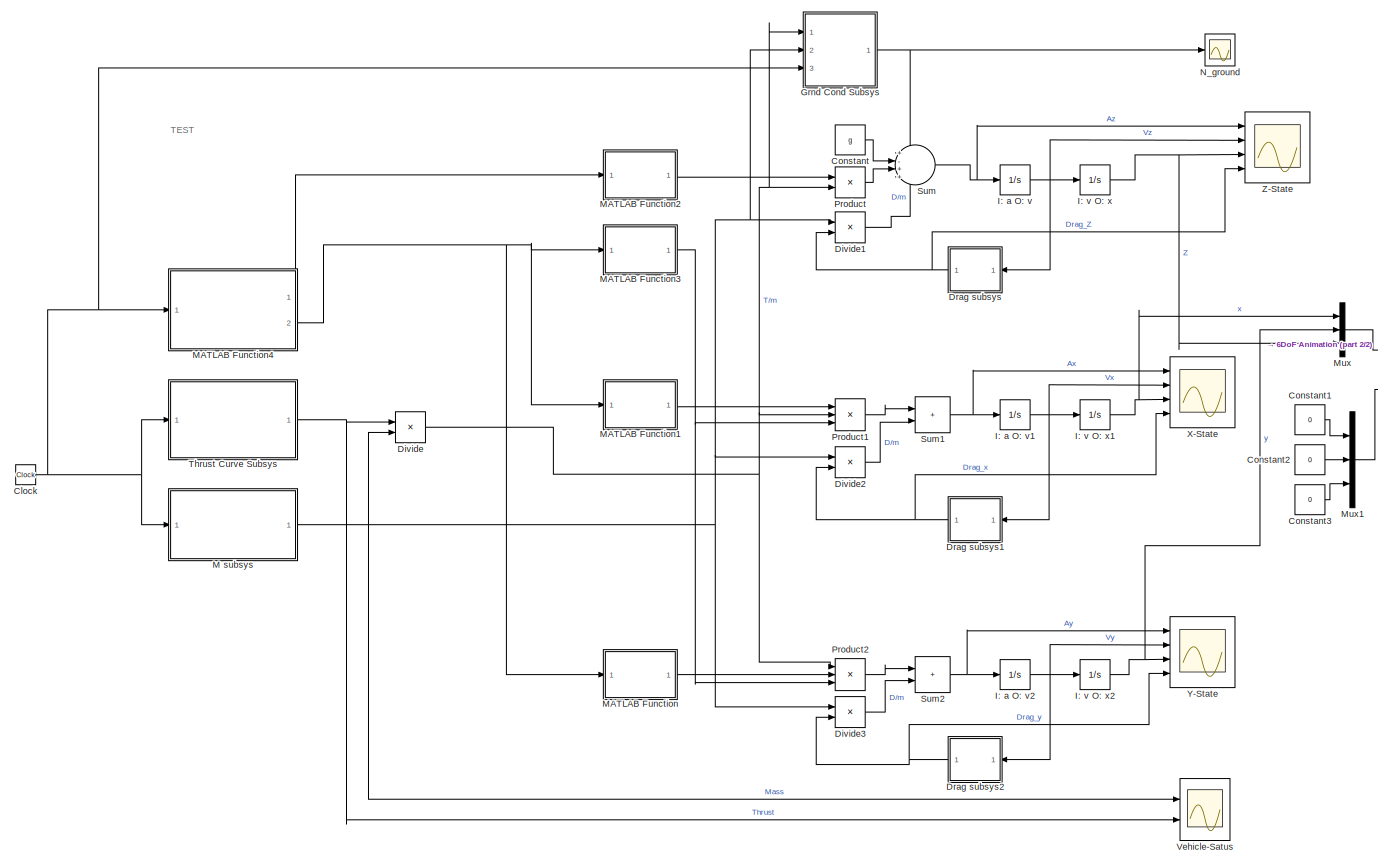
[diagram: root canvas - part 1/2, most of the canvas]
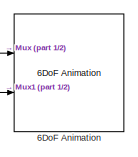
[diagram: root canvas - part 2/2, middle right region]
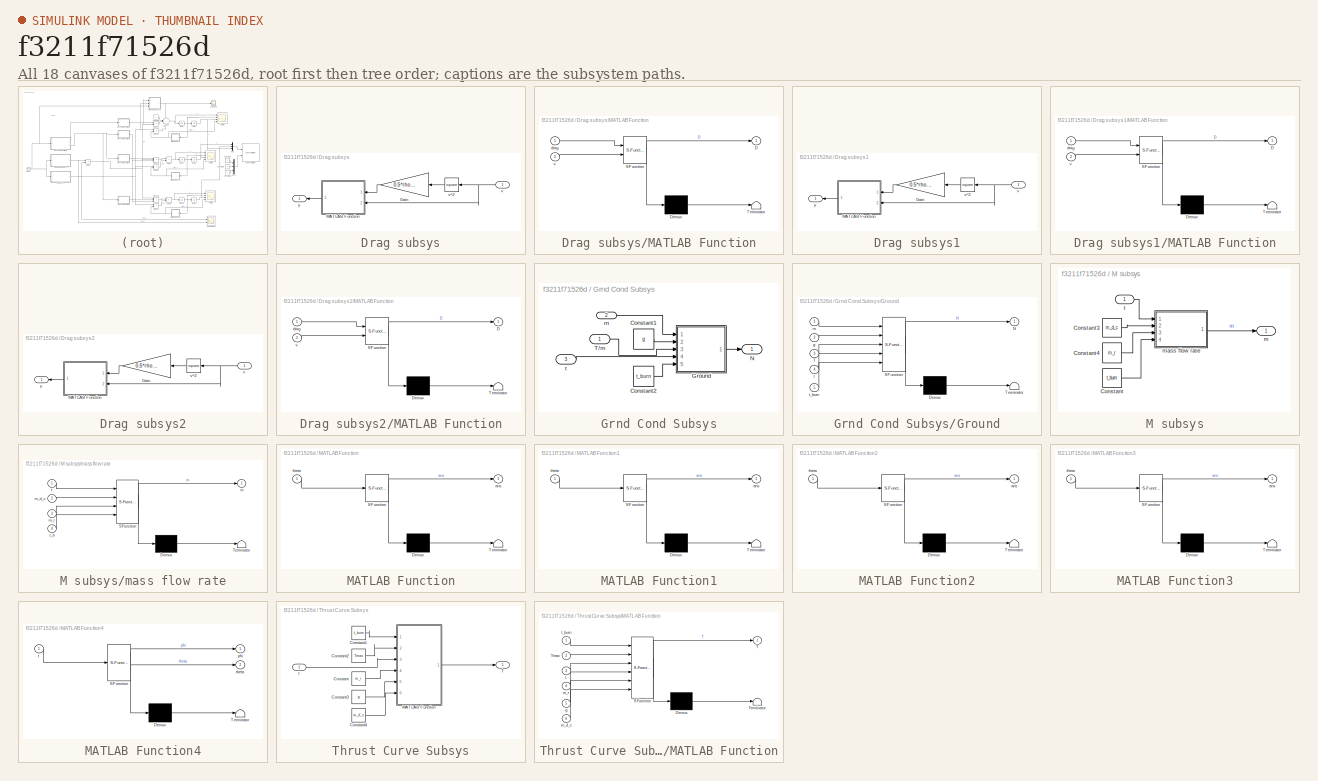
[diagram: thumbnail index - all 18 canvases of the model, root first then tree order]
MODEL slx_f3211f71526d
KIND model
CONFIG AbsTol = auto
CONFIG EnableMultiTasking = off
CONFIG FixedStep = auto
CONFIG MaxStep = auto
CONFIG MinStep = auto
CONFIG RelTol = 1e-3
CONFIG SampleTimeConstraint = Unconstrained
CONFIG SolverName = VariableStepAuto
CONFIG StartTime = 0.0
CONFIG StopTime = 20
BLOCK [Reference] 6DoF Animation  REF=aerolibanim/6DoF Animation
  Commented = on
  Ports = [2]
  SourceBlock = aerolibanim/6DoF Animation
  SourceProductBaseCode = AE
  SourceType = 6DoF_Animation
BLOCK [Clock] Clock
  Decimation = 5
BLOCK [Constant] Constant
  Value = g
BLOCK [Constant] Constant1
  Value = 0
BLOCK [Constant] Constant2
  Value = 0
BLOCK [Constant] Constant3
  Value = 0
BLOCK [Product] Divide
  Inputs = */
  Ports = [2, 1]
BLOCK [Product] Divide1
  Inputs = /*
  Ports = [2, 1]
BLOCK [Product] Divide2
  Inputs = /*
  Ports = [2, 1]
BLOCK [Product] Divide3
  Inputs = /*
  Ports = [2, 1]
BLOCK [SubSystem] Drag subsys
  Ports = [1, 1]
  RequestExecContextInheritance = off
BLOCK [Gain] Drag subsys/Gain
  Gain = 0.5*rho*Cd*Ar
  NameLocation = top
BLOCK [SubSystem] Drag subsys/MATLAB Function
  ErrorFcn = Stateflow.Translate.translate
  NameLocation = top
  PermitHierarchicalResolution = ExplicitOnly
  Ports = [2, 1]
  RequestExecContextInheritance = off
  SFBlockType = MATLAB Function
  TreatAsAtomicUnit = on
BLOCK [Demux] Drag subsys/MATLAB Function/ Demux 
  Outputs = 1
  Ports = [1, 1]
BLOCK [S-Function] Drag subsys/MATLAB Function/ SFunction 
  EnableBusSupport = on
  FunctionName = sf_sfun
  PortCounts = [2 2]
  Ports = [2, 2]
  SFcnIsStateOwnerBlock = off
  SFunctionDeploymentMode = off
  Tag = Stateflow S-Function 3
BLOCK [Terminator] Drag subsys/MATLAB Function/ Terminator 
BLOCK [Outport] Drag subsys/MATLAB Function/D
BLOCK [Inport] Drag subsys/MATLAB Function/drag
BLOCK [Inport] Drag subsys/MATLAB Function/v
  Port = 2
BLOCK [Inport] Drag subsys/v
  NameLocation = top
BLOCK [Math] Drag subsys/v^2
  NameLocation = top
  Operator = square
  Ports = [1, 1]
BLOCK [Outport] Drag subsys/y
  NameLocation = top
BLOCK [SubSystem] Drag subsys1
  Ports = [1, 1]
  RequestExecContextInheritance = off
BLOCK [Gain] Drag subsys1/Gain
  Gain = 0.5*rho*Cd*Ar
  NameLocation = top
BLOCK [SubSystem] Drag subsys1/MATLAB Function
  ErrorFcn = Stateflow.Translate.translate
  NameLocation = top
  PermitHierarchicalResolution = ExplicitOnly
  Ports = [2, 1]
  RequestExecContextInheritance = off
  SFBlockType = MATLAB Function
  TreatAsAtomicUnit = on
BLOCK [Demux] Drag subsys1/MATLAB Function/ Demux 
  Outputs = 1
  Ports = [1, 1]
BLOCK [S-Function] Drag subsys1/MATLAB Function/ SFunction 
  EnableBusSupport = on
  FunctionName = sf_sfun
  PortCounts = [2 2]
  Ports = [2, 2]
  SFcnIsStateOwnerBlock = off
  SFunctionDeploymentMode = off
  Tag = Stateflow S-Function 4
BLOCK [Terminator] Drag subsys1/MATLAB Function/ Terminator 
BLOCK [Outport] Drag subsys1/MATLAB Function/D
BLOCK [Inport] Drag subsys1/MATLAB Function/drag
BLOCK [Inport] Drag subsys1/MATLAB Function/v
  Port = 2
BLOCK [Inport] Drag subsys1/v
  NameLocation = top
BLOCK [Math] Drag subsys1/v^2
  NameLocation = top
  Operator = square
  Ports = [1, 1]
BLOCK [Outport] Drag subsys1/y
  NameLocation = top
BLOCK [SubSystem] Drag subsys2
  Ports = [1, 1]
  RequestExecContextInheritance = off
BLOCK [Gain] Drag subsys2/Gain
  Gain = 0.5*rho*Cd*Ar
  NameLocation = top
BLOCK [SubSystem] Drag subsys2/MATLAB Function
  ErrorFcn = Stateflow.Translate.translate
  NameLocation = top
  PermitHierarchicalResolution = ExplicitOnly
  Ports = [2, 1]
  RequestExecContextInheritance = off
  SFBlockType = MATLAB Function
  TreatAsAtomicUnit = on
BLOCK [Demux] Drag subsys2/MATLAB Function/ Demux 
  Outputs = 1
  Ports = [1, 1]
BLOCK [S-Function] Drag subsys2/MATLAB Function/ SFunction 
  EnableBusSupport = on
  FunctionName = sf_sfun
  PortCounts = [2 2]
  Ports = [2, 2]
  SFcnIsStateOwnerBlock = off
  SFunctionDeploymentMode = off
  Tag = Stateflow S-Function 5
BLOCK [Terminator] Drag subsys2/MATLAB Function/ Terminator 
BLOCK [Outport] Drag subsys2/MATLAB Function/D
BLOCK [Inport] Drag subsys2/MATLAB Function/drag
BLOCK [Inport] Drag subsys2/MATLAB Function/v
  Port = 2
BLOCK [Inport] Drag subsys2/v
  NameLocation = top
BLOCK [Math] Drag subsys2/v^2
  NameLocation = top
  Operator = square
  Ports = [1, 1]
BLOCK [Outport] Drag subsys2/y
  NameLocation = top
BLOCK [SubSystem] Grnd Cond Subsys
  Ports = [3, 1]
  RequestExecContextInheritance = off
BLOCK [Constant] Grnd Cond Subsys/Constant1
  Value = g
BLOCK [Constant] Grnd Cond Subsys/Constant2
  Value = t_burn
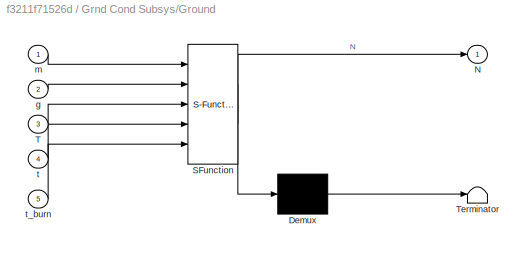
BLOCK [SubSystem] Grnd Cond Subsys/Ground
  ErrorFcn = Stateflow.Translate.translate
  PermitHierarchicalResolution = ExplicitOnly
  Ports = [5, 1]
  RequestExecContextInheritance = off
  SFBlockType = MATLAB Function
  TreatAsAtomicUnit = on
BLOCK [Demux] Grnd Cond Subsys/Ground/ Demux 
  Outputs = 1
  Ports = [1, 1]
BLOCK [S-Function] Grnd Cond Subsys/Ground/ SFunction 
  EnableBusSupport = on
  FunctionName = sf_sfun
  PortCounts = [5 2]
  Ports = [5, 2]
  SFcnIsStateOwnerBlock = off
  SFunctionDeploymentMode = off
  Tag = Stateflow S-Function 11
BLOCK [Terminator] Grnd Cond Subsys/Ground/ Terminator 
BLOCK [Outport] Grnd Cond Subsys/Ground/N
BLOCK [Inport] Grnd Cond Subsys/Ground/T
  Port = 3
BLOCK [Inport] Grnd Cond Subsys/Ground/g
  Port = 2
BLOCK [Inport] Grnd Cond Subsys/Ground/m
BLOCK [Inport] Grnd Cond Subsys/Ground/t
  Port = 4
BLOCK [Inport] Grnd Cond Subsys/Ground/t_burn
  Port = 5
BLOCK [Outport] Grnd Cond Subsys/N
BLOCK [Inport] Grnd Cond Subsys/T//m
BLOCK [Inport] Grnd Cond Subsys/m
  Port = 2
BLOCK [Inport] Grnd Cond Subsys/t
  Port = 3
BLOCK [Integrator] I: a O: v
  Ports = [1, 1]
BLOCK [Integrator] I: a O: v1
  Ports = [1, 1]
BLOCK [Integrator] I: a O: v2
  Ports = [1, 1]
BLOCK [Integrator] I: v O: x
  LimitOutput = on
  LowerSaturationLimit = 0
  Ports = [1, 1]
BLOCK [Integrator] I: v O: x1
  LimitOutput = on
  LowerSaturationLimit = 0
  Ports = [1, 1]
BLOCK [Integrator] I: v O: x2
  LimitOutput = on
  LowerSaturationLimit = 0
  Ports = [1, 1]
BLOCK [SubSystem] M subsys
  Ports = [1, 1]
  RequestExecContextInheritance = off
BLOCK [Constant] M subsys/Constant
  Value = t_burn
BLOCK [Constant] M subsys/Constant3
  Value = m_d_c
BLOCK [Constant] M subsys/Constant4
  Value = m_r
BLOCK [Outport] M subsys/m
BLOCK [SubSystem] M subsys/mass flow rate
  ErrorFcn = Stateflow.Translate.translate
  PermitHierarchicalResolution = ExplicitOnly
  Ports = [4, 1]
  RequestExecContextInheritance = off
  SFBlockType = MATLAB Function
  TreatAsAtomicUnit = on
BLOCK [Demux] M subsys/mass flow rate/ Demux 
  Outputs = 1
  Ports = [1, 1]
BLOCK [S-Function] M subsys/mass flow rate/ SFunction 
  EnableBusSupport = on
  FunctionName = sf_sfun
  PortCounts = [4 2]
  Ports = [4, 2]
  SFcnIsStateOwnerBlock = off
  SFunctionDeploymentMode = off
  Tag = Stateflow S-Function 1
BLOCK [Terminator] M subsys/mass flow rate/ Terminator 
BLOCK [Outport] M subsys/mass flow rate/m
BLOCK [Inport] M subsys/mass flow rate/m_d_c
  Port = 2
BLOCK [Inport] M subsys/mass flow rate/m_r
  Port = 3
BLOCK [Inport] M subsys/mass flow rate/t
BLOCK [Inport] M subsys/mass flow rate/t_b
  Port = 4
BLOCK [Inport] M subsys/t
BLOCK [SubSystem] MATLAB Function
  ErrorFcn = Stateflow.Translate.translate
  PermitHierarchicalResolution = ExplicitOnly
  Ports = [1, 1]
  RequestExecContextInheritance = off
  SFBlockType = MATLAB Function
  TreatAsAtomicUnit = on
BLOCK [Demux] MATLAB Function/ Demux 
  Outputs = 1
  Ports = [1, 1]
BLOCK [S-Function] MATLAB Function/ SFunction 
  EnableBusSupport = on
  FunctionName = sf_sfun
  PortCounts = [1 2]
  Ports = [1, 2]
  SFcnIsStateOwnerBlock = off
  SFunctionDeploymentMode = off
  Tag = Stateflow S-Function 6
BLOCK [Terminator] MATLAB Function/ Terminator 
BLOCK [Outport] MATLAB Function/ans
BLOCK [Inport] MATLAB Function/theta
BLOCK [SubSystem] MATLAB Function1
  ErrorFcn = Stateflow.Translate.translate
  PermitHierarchicalResolution = ExplicitOnly
  Ports = [1, 1]
  RequestExecContextInheritance = off
  SFBlockType = MATLAB Function
  TreatAsAtomicUnit = on
BLOCK [Demux] MATLAB Function1/ Demux 
  Outputs = 1
  Ports = [1, 1]
BLOCK [S-Function] MATLAB Function1/ SFunction 
  EnableBusSupport = on
  FunctionName = sf_sfun
  PortCounts = [1 2]
  Ports = [1, 2]
  SFcnIsStateOwnerBlock = off
  SFunctionDeploymentMode = off
  Tag = Stateflow S-Function 7
BLOCK [Terminator] MATLAB Function1/ Terminator 
BLOCK [Outport] MATLAB Function1/ans
BLOCK [Inport] MATLAB Function1/theta
BLOCK [SubSystem] MATLAB Function2
  ErrorFcn = Stateflow.Translate.translate
  PermitHierarchicalResolution = ExplicitOnly
  Ports = [1, 1]
  RequestExecContextInheritance = off
  SFBlockType = MATLAB Function
  TreatAsAtomicUnit = on
BLOCK [Demux] MATLAB Function2/ Demux 
  Outputs = 1
  Ports = [1, 1]
BLOCK [S-Function] MATLAB Function2/ SFunction 
  EnableBusSupport = on
  FunctionName = sf_sfun
  PortCounts = [1 2]
  Ports = [1, 2]
  SFcnIsStateOwnerBlock = off
  SFunctionDeploymentMode = off
  Tag = Stateflow S-Function 8
BLOCK [Terminator] MATLAB Function2/ Terminator 
BLOCK [Outport] MATLAB Function2/ans
BLOCK [Inport] MATLAB Function2/theta
BLOCK [SubSystem] MATLAB Function3
  ErrorFcn = Stateflow.Translate.translate
  PermitHierarchicalResolution = ExplicitOnly
  Ports = [1, 1]
  RequestExecContextInheritance = off
  SFBlockType = MATLAB Function
  TreatAsAtomicUnit = on
BLOCK [Demux] MATLAB Function3/ Demux 
  Outputs = 1
  Ports = [1, 1]
BLOCK [S-Function] MATLAB Function3/ SFunction 
  EnableBusSupport = on
  FunctionName = sf_sfun
  PortCounts = [1 2]
  Ports = [1, 2]
  SFcnIsStateOwnerBlock = off
  SFunctionDeploymentMode = off
  Tag = Stateflow S-Function 9
BLOCK [Terminator] MATLAB Function3/ Terminator 
BLOCK [Outport] MATLAB Function3/ans
BLOCK [Inport] MATLAB Function3/theta
BLOCK [SubSystem] MATLAB Function4
  ErrorFcn = Stateflow.Translate.translate
  PermitHierarchicalResolution = ExplicitOnly
  Ports = [1, 2]
  RequestExecContextInheritance = off
  SFBlockType = MATLAB Function
  TreatAsAtomicUnit = on
BLOCK [Demux] MATLAB Function4/ Demux 
  Outputs = 1
  Ports = [1, 1]
BLOCK [S-Function] MATLAB Function4/ SFunction 
  EnableBusSupport = on
  FunctionName = sf_sfun
  PortCounts = [1 3]
  Ports = [1, 3]
  SFcnIsStateOwnerBlock = off
  SFunctionDeploymentMode = off
  Tag = Stateflow S-Function 10
BLOCK [Terminator] MATLAB Function4/ Terminator 
BLOCK [Outport] MATLAB Function4/phi
BLOCK [Inport] MATLAB Function4/t
BLOCK [Outport] MATLAB Function4/theta
  Port = 2
BLOCK [Mux] Mux
  DisplayOption = bar
  Inputs = 3
  Ports = [3, 1]
BLOCK [Mux] Mux1
  DisplayOption = bar
  Inputs = 3
  Ports = [3, 1]
BLOCK [Scope] N_ground
  Floating = off
  NumInputPorts = 1
  Ports = [1]
  ScopeSpecificationString = Simulink.scopes.TimeScopeBlockCfg('CurrentConfiguration', extmgr.ConfigurationSet(extmgr.Configuration('Core','General UI',true),extmgr.Configuration('Core','Source UI',true),extmgr.Configuration('Sources','WiredSimulink',true,'DataLoggingVariableName','ScopeData2'),extmgr.Configuration('Visuals','Time Domain',true,'SerializedDisplays',{struct('MinYLimReal','-1.22625','MaxYLimReal','11.03625','YLa...<+1477ch>
BLOCK [Product] Product
  Ports = [2, 1]
BLOCK [Product] Product1
  Inputs = 3
  Ports = [3, 1]
BLOCK [Product] Product2
  Inputs = 3
  Ports = [3, 1]
BLOCK [Sum] Sum
  Inputs = +-++
  Ports = [4, 1]
BLOCK [Sum] Sum1
  IconShape = rectangular
  Ports = [2, 1]
BLOCK [Sum] Sum2
  IconShape = rectangular
  Ports = [2, 1]
BLOCK [SubSystem] Thrust Curve Subsys
  Ports = [1, 1]
  RequestExecContextInheritance = off
BLOCK [Constant] Thrust Curve Subsys/Constant
  Value = m_r
BLOCK [Constant] Thrust Curve Subsys/Constant1
  Value = t_burn
BLOCK [Constant] Thrust Curve Subsys/Constant2
  Value = Tmax
BLOCK [Constant] Thrust Curve Subsys/Constant3
  Value = g
BLOCK [Constant] Thrust Curve Subsys/Constant4
  Value = m_d_c
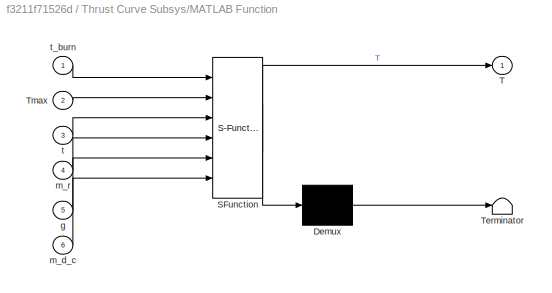
BLOCK [SubSystem] Thrust Curve Subsys/MATLAB Function
  ErrorFcn = Stateflow.Translate.translate
  NameLocation = top
  PermitHierarchicalResolution = ExplicitOnly
  Ports = [6, 1]
  RequestExecContextInheritance = off
  SFBlockType = MATLAB Function
  TreatAsAtomicUnit = on
BLOCK [Demux] Thrust Curve Subsys/MATLAB Function/ Demux 
  Outputs = 1
  Ports = [1, 1]
BLOCK [S-Function] Thrust Curve Subsys/MATLAB Function/ SFunction 
  EnableBusSupport = on
  FunctionName = sf_sfun
  PortCounts = [6 2]
  Ports = [6, 2]
  SFcnIsStateOwnerBlock = off
  SFunctionDeploymentMode = off
  Tag = Stateflow S-Function 2
BLOCK [Terminator] Thrust Curve Subsys/MATLAB Function/ Terminator 
BLOCK [Outport] Thrust Curve Subsys/MATLAB Function/T
BLOCK [Inport] Thrust Curve Subsys/MATLAB Function/Tmax
  Port = 2
BLOCK [Inport] Thrust Curve Subsys/MATLAB Function/g
  Port = 5
BLOCK [Inport] Thrust Curve Subsys/MATLAB Function/m_d_c
  Port = 6
BLOCK [Inport] Thrust Curve Subsys/MATLAB Function/m_r
  Port = 4
BLOCK [Inport] Thrust Curve Subsys/MATLAB Function/t
  Port = 3
BLOCK [Inport] Thrust Curve Subsys/MATLAB Function/t_burn
BLOCK [Outport] Thrust Curve Subsys/T
BLOCK [Inport] Thrust Curve Subsys/t
BLOCK [Scope] Vehicle-Satus
  Floating = off
  NumInputPorts = 2
  Ports = [2]
  ScopeSpecificationString = Simulink.scopes.TimeScopeBlockCfg('CurrentConfiguration', extmgr.ConfigurationSet(extmgr.Configuration('Core','General UI',true),extmgr.Configuration('Core','Source UI',true),extmgr.Configuration('Sources','WiredSimulink',true,'DataLoggingVariableName','ScopeData1'),extmgr.Configuration('Visuals','Time Domain',true,'SerializedDisplays',{struct('MinYLimReal','0.4775','MaxYLimReal','0.5025','YLabelR...<+2041ch>
BLOCK [Scope] X-State
  Floating = off
  NumInputPorts = 4
  Ports = [4]
  ScopeSpecificationString = Simulink.scopes.TimeScopeBlockCfg('CurrentConfiguration', extmgr.ConfigurationSet(extmgr.Configuration('Core','General UI',true),extmgr.Configuration('Core','Source UI',true),extmgr.Configuration('Sources','WiredSimulink',true,'DataLoggingVariableName','ScopeData3'),extmgr.Configuration('Visuals','Time Domain',true,'SerializedDisplays',{struct('MinYLimReal','-6.47761','MaxYLimReal','7.24913','YLab...<+3504ch>
BLOCK [Scope] Y-State
  Floating = off
  NumInputPorts = 4
  Ports = [4]
  ScopeSpecificationString = Simulink.scopes.TimeScopeBlockCfg('CurrentConfiguration', extmgr.ConfigurationSet(extmgr.Configuration('Core','General UI',true),extmgr.Configuration('Core','Source UI',true),extmgr.Configuration('Sources','WiredSimulink',true,'DataLoggingVariableName','ScopeData5'),extmgr.Configuration('Visuals','Time Domain',true,'SerializedDisplays',{struct('MinYLimReal','-6.35916','MaxYLimReal','12.20376','YLa...<+3512ch>
BLOCK [Scope] Z-State
  Floating = off
  NumInputPorts = 4
  Ports = [4]
  ScopeSpecificationString = Simulink.scopes.TimeScopeBlockCfg('CurrentConfiguration', extmgr.ConfigurationSet(extmgr.Configuration('Core','General UI',true),extmgr.Configuration('Core','Source UI',true),extmgr.Configuration('Sources','WiredSimulink',true,'DataLoggingVariableName','ScopeData4'),extmgr.Configuration('Visuals','Time Domain',true,'SerializedDisplays',{struct('MinYLimReal','-10.85588','MaxYLimReal','3.49021','YLa...<+3505ch>
ANNOTATION (root): TEST
NET Clock:1 -> Grnd Cond Subsys:3, M subsys:1, MATLAB Function4:1, Thrust Curve Subsys:1
LINE Constant1:1 -> Mux1:1
LINE Constant2:1 -> Mux1:2
LINE Constant3:1 -> Mux1:3
LINE Constant:1 -> Sum:2
LINE Divide1:1 -> Sum:4
LINE Divide2:1 -> Sum1:2
LINE Divide3:1 -> Sum2:2
NET Divide:1 -> Grnd Cond Subsys:1, Product1:2, Product2:1, Product:2
LINE Drag subsys/Gain:1 -> Drag subsys/MATLAB Function:1
LINE Drag subsys/MATLAB Function:1 -> Drag subsys/y:1
NET Drag subsys/v:1 -> Drag subsys/MATLAB Function:2, Drag subsys/v^2:1
LINE Drag subsys/v^2:1 -> Drag subsys/Gain:1
LINE Drag subsys1/Gain:1 -> Drag subsys1/MATLAB Function:1
LINE Drag subsys1/MATLAB Function:1 -> Drag subsys1/y:1
NET Drag subsys1/v:1 -> Drag subsys1/MATLAB Function:2, Drag subsys1/v^2:1
LINE Drag subsys1/v^2:1 -> Drag subsys1/Gain:1
NET Drag subsys1:1 -> Divide2:2, X-State:4
LINE Drag subsys2/Gain:1 -> Drag subsys2/MATLAB Function:1
LINE Drag subsys2/MATLAB Function:1 -> Drag subsys2/y:1
NET Drag subsys2/v:1 -> Drag subsys2/MATLAB Function:2, Drag subsys2/v^2:1
LINE Drag subsys2/v^2:1 -> Drag subsys2/Gain:1
NET Drag subsys2:1 -> Divide3:2, Y-State:4
NET Drag subsys:1 -> Divide1:2, Z-State:4
LINE Grnd Cond Subsys/Constant1:1 -> Grnd Cond Subsys/Ground:2
LINE Grnd Cond Subsys/Constant2:1 -> Grnd Cond Subsys/Ground:5
LINE Grnd Cond Subsys/Ground:1 -> Grnd Cond Subsys/N:1
LINE Grnd Cond Subsys/T//m:1 -> Grnd Cond Subsys/Ground:3
LINE Grnd Cond Subsys/m:1 -> Grnd Cond Subsys/Ground:1
LINE Grnd Cond Subsys/t:1 -> Grnd Cond Subsys/Ground:4
NET Grnd Cond Subsys:1 -> N_ground:1, Sum:1
NET I: a O: v1:1 -> Drag subsys1:1, I: v O: x1:1, X-State:2
NET I: a O: v2:1 -> Drag subsys2:1, I: v O: x2:1, Y-State:2
NET I: a O: v:1 -> Drag subsys:1, I: v O: x:1, Z-State:2
NET I: v O: x1:1 -> Mux:1, X-State:3
NET I: v O: x2:1 -> Mux:2, Y-State:3
NET I: v O: x:1 -> Mux:3, Z-State:3
LINE M subsys/Constant3:1 -> M subsys/mass flow rate:2
LINE M subsys/Constant4:1 -> M subsys/mass flow rate:3
LINE M subsys/Constant:1 -> M subsys/mass flow rate:4
LINE M subsys/mass flow rate:1 -> M subsys/m:1
LINE M subsys/t:1 -> M subsys/mass flow rate:1
NET M subsys:1 -> Divide1:1, Divide2:1, Divide3:1, Divide:2, Grnd Cond Subsys:2, Vehicle-Satus:1
LINE MATLAB Function1:1 -> Product1:1
LINE MATLAB Function2:1 -> Product:1
NET MATLAB Function3:1 -> Product1:3, Product2:3
LINE MATLAB Function4:1 -> MATLAB Function2:1
NET MATLAB Function4:2 -> MATLAB Function1:1, MATLAB Function3:1, MATLAB Function:1
LINE MATLAB Function:1 -> Product2:2
LINE Mux1:1 -> 6DoF Animation:2
LINE Mux:1 -> 6DoF Animation:1
LINE Product1:1 -> Sum1:1
LINE Product2:1 -> Sum2:1
LINE Product:1 -> Sum:3
NET Sum1:1 -> I: a O: v1:1, X-State:1
NET Sum2:1 -> I: a O: v2:1, Y-State:1
NET Sum:1 -> I: a O: v:1, Z-State:1
LINE Thrust Curve Subsys/Constant1:1 -> Thrust Curve Subsys/MATLAB Function:1
LINE Thrust Curve Subsys/Constant2:1 -> Thrust Curve Subsys/MATLAB Function:2
LINE Thrust Curve Subsys/Constant3:1 -> Thrust Curve Subsys/MATLAB Function:5
LINE Thrust Curve Subsys/Constant4:1 -> Thrust Curve Subsys/MATLAB Function:6
LINE Thrust Curve Subsys/Constant:1 -> Thrust Curve Subsys/MATLAB Function:4
LINE Thrust Curve Subsys/MATLAB Function:1 -> Thrust Curve Subsys/T:1
LINE Thrust Curve Subsys/t:1 -> Thrust Curve Subsys/MATLAB Function:3
NET Thrust Curve Subsys:1 -> Divide:1, Vehicle-Satus:2
note: NET lines group one-source signal fan-out (src -> all destinations, sorted); 1:1 wires keep LINE
CHART M subsys/mass flow rate states=1 transitions=1
  STATE_LABEL 'eML_blk_kernel()'
  STATE_LABEL "SCRIPT:\nfunction m = m_flow(t, m_d_c, m_r, t_b)\n%Const Define in 'constants1DoF.m'\n%out mass at time t\n\n\nif t <= t_b \n    m= -m_d_c*t + m_r;\nelse\n    m = -m_d_c*t_b + m_r;\nend\n"
CHART Thrust Curve Subsys/MATLAB Function states=1 transitions=1
  STATE_LABEL 'eML_blk_kernel()'
  STATE_LABEL "SCRIPT:\nfunction T = T_of_t(t_burn, Tmax, t, m_r, g, m_d_c)\n%Approx Thurst Curve.\n%Total Burn time = 1s\n%Max Thrust 100N\n\n%Constants Defined in 'constants1DoF.m'\nx_hf = t_burn/2;\na = Tmax/((x_hf)*(x_hf - t_burn));\n\n\nif t<=0\n    T = 0; %ded\n\nelseif t<t_burn\n    T = a*t*(t-t_burn); %lift off burn\n\nelse\n    T = m_r*g - t_burn*m_d_c; %constant burn at rocket weight\nend\n"
CHART Drag subsys/MATLAB Function states=1 transitions=1
  STATE_LABEL 'eML_blk_kernel()'
  STATE_LABEL 'SCRIPT:\nfunction D = sign_change(drag, v)\n%changes signs of Drag when appropiate. Vertical Up is positive\nif v>0\n    D = -drag;\nelse\n    D = drag;\nend\n'
CHART Drag subsys1/MATLAB Function states=1 transitions=1
  STATE_LABEL 'eML_blk_kernel()'
  STATE_LABEL 'SCRIPT:\nfunction D = sign_change(drag, v)\n%changes signs of Drag when appropiate.\nif v>0\n    D = -drag;\nelse\n    D = drag;\nend\n'
CHART Drag subsys2/MATLAB Function states=1 transitions=1
  STATE_LABEL 'eML_blk_kernel()'
  STATE_LABEL 'SCRIPT:\nfunction D = sign_change(drag, v)\n%changes signs of Drag when appropiate. Vertical Up is positive\nif v>0\n    D = -drag;\nelse\n    D = drag;\nend\n'
CHART MATLAB Function states=1 transitions=1
  STATE_LABEL 'eML_blk_kernel()'
  STATE_LABEL 'SCRIPT:\nfunction ans = sin(theta)\n%in rad\nans = sin(theta);\n'
CHART MATLAB Function1 states=1 transitions=1
  STATE_LABEL 'eML_blk_kernel()'
  STATE_LABEL 'SCRIPT:\nfunction ans = cos(theta)\n%in rad\nans = cos(theta);\n'
CHART MATLAB Function2 states=1 transitions=1
  STATE_LABEL 'eML_blk_kernel()'
  STATE_LABEL 'SCRIPT:\nfunction ans = cos(theta)\n%in rad\nans = cos(theta);\n'
CHART MATLAB Function3 states=1 transitions=1
  STATE_LABEL 'eML_blk_kernel()'
  STATE_LABEL 'SCRIPT:\nfunction ans = sin(theta)\n%in rad\nans = sin(theta);\n'
CHART MATLAB Function4 states=1 transitions=1
  STATE_LABEL 'eML_blk_kernel()'
  STATE_LABEL 'SCRIPT:\nfunction [phi,theta] = T_angle(t)\n\ndummyconst = 1; %random debug/test const.\n\ntheta = dummyconst * t;\nphi = 0.25;\n'
CHART Grnd Cond Subsys/Ground states=1 transitions=1
  STATE_LABEL 'eML_blk_kernel()'
  STATE_LABEL 'SCRIPT:\nfunction N = grnd(m,g,T,t,t_burn)\n\n%ground Normal Force.\nW = m*g;\n\nif T < W && t<t_burn/2\n    N = g - T/m;\nelse\n    N = 0;\nend'
CHART  states=0 transitions=0
CHART  states=0 transitions=0
CHART  states=0 transitions=0
CHART  states=0 transitions=0
CHART  states=0 transitions=0
CHART  states=0 transitions=0
CHART  states=0 transitions=0
CHART  states=0 transitions=0
CHART  states=0 transitions=0
CHART  states=0 transitions=0
CHART  states=0 transitions=0
